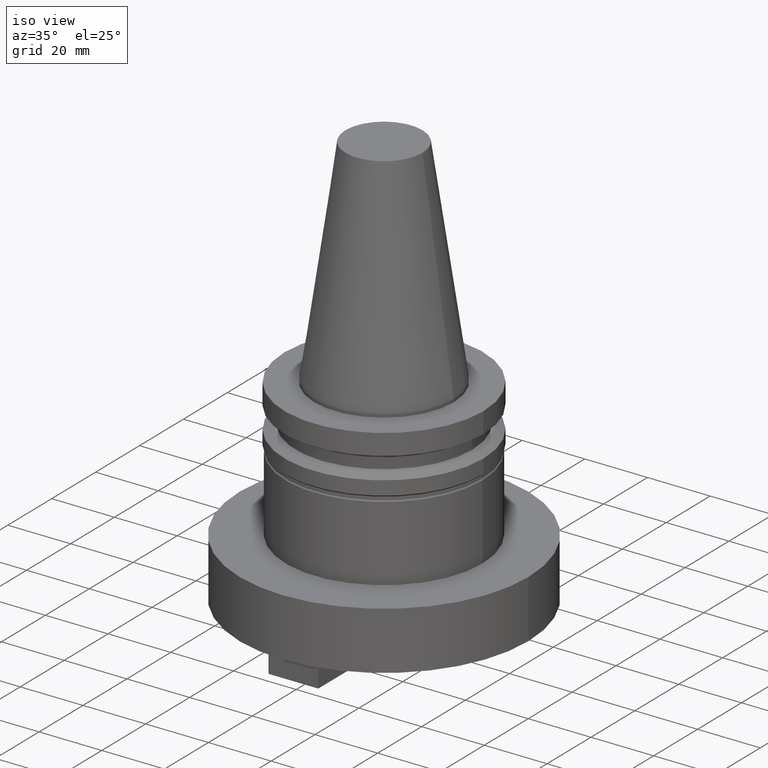
[diagram: clean part render]
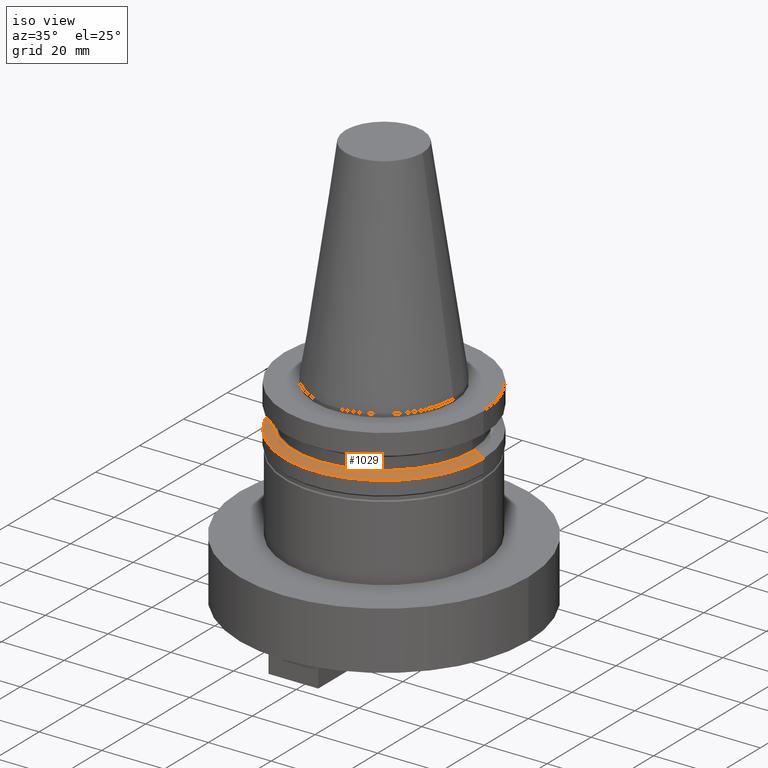
[diagram: same view with one face highlighted and labeled with its STEP entity id]
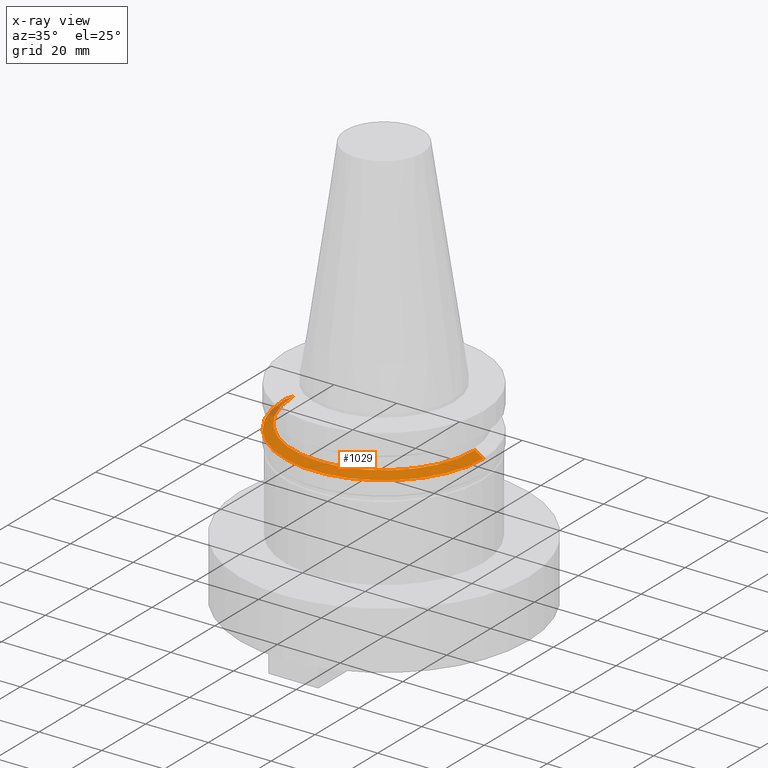
[diagram: x-ray of the same camera — body ghosted, the highlighted face saturated]
A machine part, iso view. The second image highlights one B-rep face of the part: STEP entity #1029.
The next image is the same camera in x-ray: the body ghosted, the highlighted face saturated — about 4% of this face is hidden behind the body in this view.
In plain terms, the highlighted conical surface has half-angle 60 deg.
Its self-contained STEP definition (entity closure, byte-faithful):
#3 = DIRECTION ( 'NONE',  ( 1.000000000000000000, 0.000000000000000000, 0.000000000000000000 ) ) ;
#80 = CARTESIAN_POINT ( 'NONE',  ( 0.000000000000000000, 0.000000000000000000, -14.65472339340266572 ) ) ;
#99 = VERTEX_POINT ( 'NONE', #751 ) ;
#136 = VERTEX_POINT ( 'NONE', #505 ) ;
#205 = AXIS2_PLACEMENT_3D ( 'NONE', #728, #822, #3 ) ;
#266 = DIRECTION ( 'NONE',  ( 0.000000000000000000, 0.000000000000000000, -1.000000000000000000 ) ) ;
#278 = CARTESIAN_POINT ( 'NONE',  ( -28.97919780457008088, 0.000000000000000000, -13.05499999999999794 ) ) ;
#292 = EDGE_LOOP ( 'NONE', ( #1152, #406, #1023, #1157 ) ) ;
#373 = DIRECTION ( 'NONE',  ( -1.000000000000000000, 0.000000000000000000, 0.000000000000000000 ) ) ;
#406 = ORIENTED_EDGE ( 'NONE', *, *, #969, .F. ) ;
#433 = VERTEX_POINT ( 'NONE', #278 ) ;
#505 = CARTESIAN_POINT ( 'NONE',  ( 28.97919780457008088, 3.718590885307660666E-15, -13.05499999999999794 ) ) ;
#534 = DIRECTION ( 'NONE',  ( 0.8660254037844387076, 1.060575238724906915E-16, -0.4999999999999998890 ) ) ;
#556 = LINE ( 'NONE', #845, #614 ) ;
#614 = VECTOR ( 'NONE', #942, 1000.000000000000000 ) ;
#654 = CARTESIAN_POINT ( 'NONE',  ( 0.000000000000000000, 0.000000000000000000, -13.05499999999999794 ) ) ;
#660 = DIRECTION ( 'NONE',  ( 1.000000000000000000, 0.000000000000000000, 0.000000000000000000 ) ) ;
#720 = EDGE_CURVE ( 'NONE', #136, #986, #1173, .T. ) ;
#728 = CARTESIAN_POINT ( 'NONE',  ( 0.000000000000000000, 0.000000000000000000, -14.65472339340266572 ) ) ;
#748 = AXIS2_PLACEMENT_3D ( 'NONE', #80, #266, #373 ) ;
#751 = CARTESIAN_POINT ( 'NONE',  ( -31.75000000000000000, 3.888253587292846476E-15, -14.65472339340266572 ) ) ;
#822 = DIRECTION ( 'NONE',  ( -0.000000000000000000, -0.000000000000000000, 1.000000000000000000 ) ) ;
#827 = CIRCLE ( 'NONE', #205, 31.75000000000000000 ) ;
#836 = CARTESIAN_POINT ( 'NONE',  ( 31.75000000000000000, 3.888253587292846476E-15, -14.65472339340266572 ) ) ;
#845 = CARTESIAN_POINT ( 'NONE',  ( -31.75000000000000000, 0.000000000000000000, -14.65472339340266572 ) ) ;
#848 = CONICAL_SURFACE ( 'NONE', #748, 31.75000000000000000, 1.047197551196597853 ) ;
#921 = FACE_OUTER_BOUND ( 'NONE', #292, .T. ) ;
#942 = DIRECTION ( 'NONE',  ( -0.8660254037844387076, 0.000000000000000000, -0.4999999999999998890 ) ) ;
#959 = EDGE_CURVE ( 'NONE', #99, #986, #827, .T. ) ;
#969 = EDGE_CURVE ( 'NONE', #433, #136, #995, .T. ) ;
#976 = EDGE_CURVE ( 'NONE', #433, #99, #556, .T. ) ;
#986 = VERTEX_POINT ( 'NONE', #1191 ) ;
#995 = CIRCLE ( 'NONE', #1144, 28.97919780457008088 ) ;
#1023 = ORIENTED_EDGE ( 'NONE', *, *, #976, .T. ) ;
#1029 = ADVANCED_FACE ( 'NONE', ( #921 ), #848, .T. ) ;
#1070 = VECTOR ( 'NONE', #534, 1000.000000000000000 ) ;
#1144 = AXIS2_PLACEMENT_3D ( 'NONE', #654, #1202, #660 ) ;
#1152 = ORIENTED_EDGE ( 'NONE', *, *, #720, .F. ) ;
#1157 = ORIENTED_EDGE ( 'NONE', *, *, #959, .T. ) ;
#1173 = LINE ( 'NONE', #836, #1070 ) ;
#1191 = CARTESIAN_POINT ( 'NONE',  ( 31.75000000000000000, 0.000000000000000000, -14.65472339340266572 ) ) ;
#1202 = DIRECTION ( 'NONE',  ( -0.000000000000000000, -0.000000000000000000, 1.000000000000000000 ) ) ;